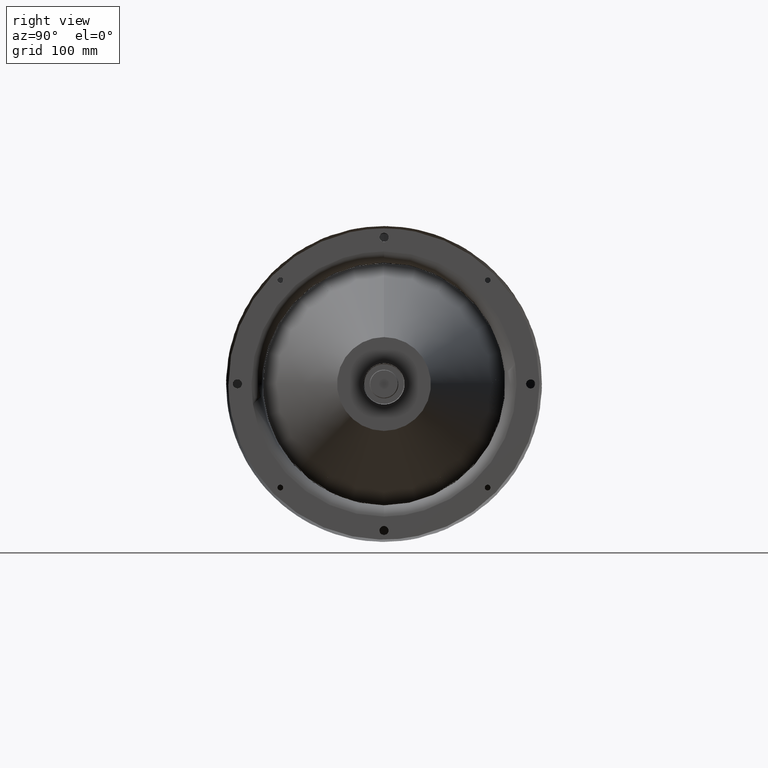
[diagram: clean part render]
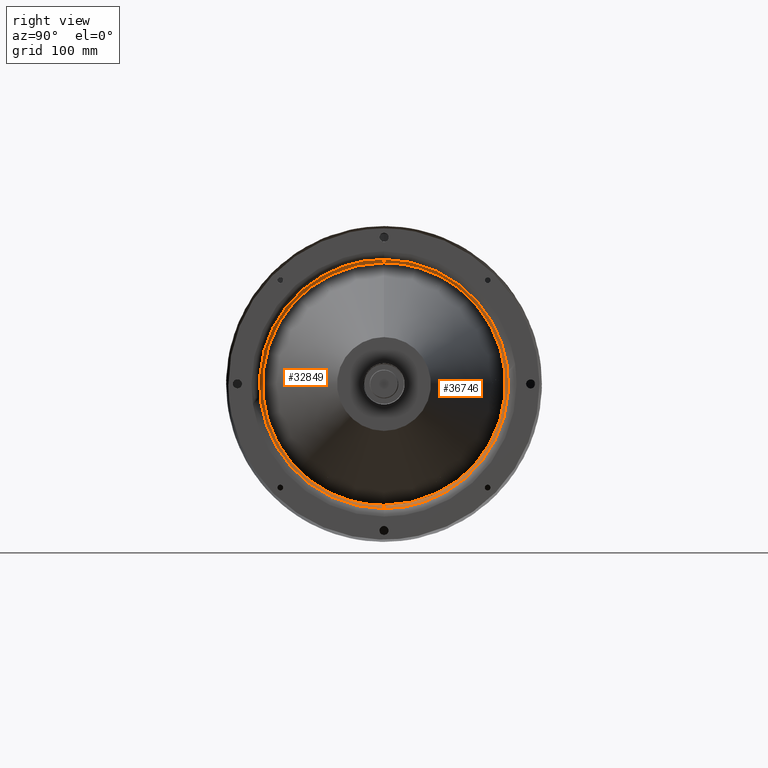
[diagram: same view with one multi-face feature highlighted, each face labeled with its STEP entity id]
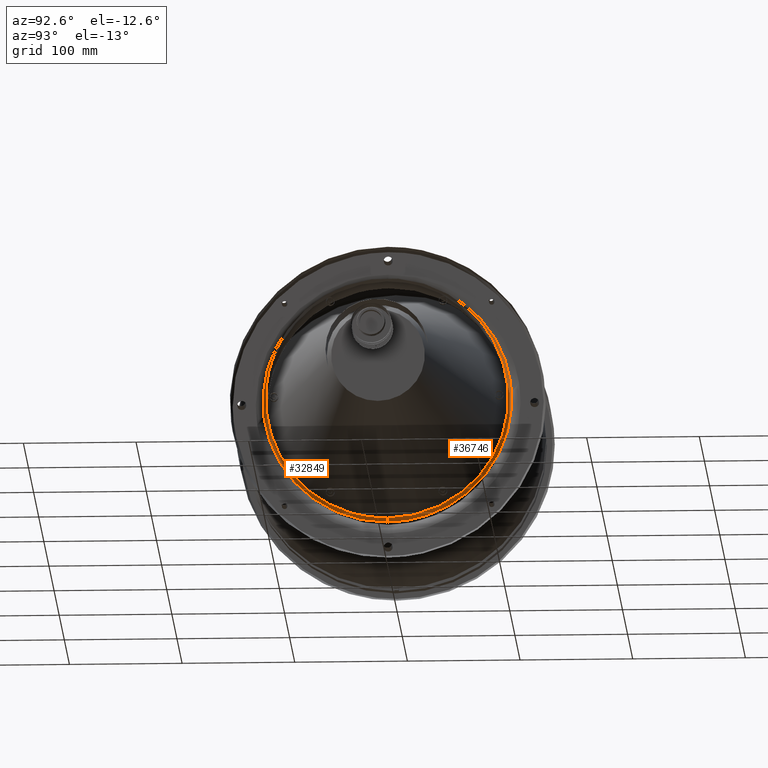
[diagram: same view with one multi-face feature highlighted, each face labeled with its STEP entity id]
A machine part, right view. The highlighted faces form ONE feature: a constant-radius fillet chain: 2 tangent blend faces with common blend radius 3 mm. The faces share edges in the B-rep.
A second angle (auxiliary view) of the same feature is appended — it is thin or edge-on in the first view.
Their STEP definitions:
[1] entity #32849 (Torus):
#41 = ORIENTED_EDGE ( 'NONE', *, *, #15006, .F. ) ;
#315 = CARTESIAN_POINT ( 'NONE',  ( 189.9999999999683382, -67.40387200346333429, -87.85939262688158635 ) ) ;
#337 = CARTESIAN_POINT ( 'NONE',  ( 192.9999999999049862, 1.075406430572910080E-10, -2.935804377379720360E-11 ) ) ;
#469 = CARTESIAN_POINT ( 'NONE',  ( 192.9999999998025260, -85.47406975086512659, 65.57390262679987813 ) ) ;
#578 = CARTESIAN_POINT ( 'NONE',  ( 189.9999999999544116, -99.32104212778517649, 48.96820830354680254 ) ) ;
#1361 = CARTESIAN_POINT ( 'NONE',  ( 189.9999999999815259, -83.24924270304020979, 73.02135593907669886 ) ) ;
#3702 = CARTESIAN_POINT ( 'NONE',  ( 192.9999999998357225, -34.63818327363666327, -102.0095562435574834 ) ) ;
#3968 = CARTESIAN_POINT ( 'NONE',  ( 192.9999999999089084, -14.07154312064334789, 106.8070455527237357 ) ) ;
#4234 = CARTESIAN_POINT ( 'NONE',  ( 192.9999999997623945, -106.8070455530594671, 14.07154311758005427 ) ) ;
#4342 = CARTESIAN_POINT ( 'NONE',  ( 190.0000000000358966, -14.46423734508711156, -109.7877072893949446 ) ) ;
#4406 = TOROIDAL_SURFACE ( 'NONE', #48106, 110.4999999998850058, 2.999999999825670116 ) ;
#4496 = CARTESIAN_POINT ( 'NONE',  ( 192.9999999998255760, -71.03887568858239376, 80.98908226661873755 ) ) ;
#4860 = CARTESIAN_POINT ( 'NONE',  ( 189.9999999999976410, -73.02135593916248979, 83.24924270297516671 ) ) ;
#5377 = CARTESIAN_POINT ( 'NONE',  ( 190.0000000000456453, -7.232208087729866008, -110.5000000000647447 ) ) ;
#7726 = CARTESIAN_POINT ( 'NONE',  ( 193.0000000002060005, -1.964130387255570030E-09, 107.5000000000199947 ) ) ;
#7999 = CARTESIAN_POINT ( 'NONE',  ( 192.9999999997733369, -102.0095562437601302, 34.63818327271494013 ) ) ;
#8366 = CIRCLE ( 'NONE', #40059, 2.999999999825670116 ) ;
#8781 = CARTESIAN_POINT ( 'NONE',  ( 192.9999999998445332, -27.87287611446775060, -104.0617897338627813 ) ) ;
#9150 = CARTESIAN_POINT ( 'NONE',  ( 190.0000000000339639, -48.96820830366510791, 99.32104212776881980 ) ) ;
#9321 = VERTEX_POINT ( 'NONE', #48935 ) ;
#10069 = AXIS2_PLACEMENT_3D ( 'NONE', #36621, #42144, #28294 ) ;
#10273 = VERTEX_POINT ( 'NONE', #27468 ) ;
#10632 = VERTEX_POINT ( 'NONE', #35213 ) ;
#11265 = B_SPLINE_CURVE_WITH_KNOTS ( 'NONE', 3,
 ( #41334, #5377, #4342, #45362, #20953, #16669, #12907, #315, #21729, #34092, #13174, #46153, #45097, #17458, #37331, #17194, #49409, #41073, #33573, #37589, #21211, #578, #49940, #12389, #1361, #4860, #33039, #29260, #9150, #29786, #49682, #41596, #20696, #45890 ),
 .UNSPECIFIED., .F., .F.,
 ( 4, 2, 2, 2, 2, 2, 2, 2, 2, 2, 2, 2, 2, 2, 2, 2, 4 ),
 ( 0.5000000000000000000, 0.5312500000000000000, 0.5625000000000000000, 0.5937500000000000000, 0.6250000000000000000, 0.6562500000000000000, 0.6875000000000000000, 0.7187500000000000000, 0.7500000000000000000, 0.7812500000000000000, 0.8125000000000000000, 0.8437500000000000000, 0.8750000000000001110, 0.9062500000000001110, 0.9375000000000001110, 0.9687500000000001110, 1.000000000000000000 ),
 .UNSPECIFIED. ) ;
#11763 = ORIENTED_EDGE ( 'NONE', *, *, #18399, .T. ) ;
#12017 = CARTESIAN_POINT ( 'NONE',  ( 192.9999999998797762, -34.63818327563712529, 102.0095562428195279 ) ) ;
#12389 = CARTESIAN_POINT ( 'NONE',  ( 189.9999999999740794, -87.85939262674122574, 67.40387200354622621 ) ) ;
#12543 = CARTESIAN_POINT ( 'NONE',  ( 192.9999999998894680, -27.87287611650845776, 104.0617897332575126 ) ) ;
#12803 = CARTESIAN_POINT ( 'NONE',  ( 192.9999999997660609, -93.29189689461944113, -53.87369747190014380 ) ) ;
#12907 = CARTESIAN_POINT ( 'NONE',  ( 189.9999999999830891, -55.37714949349133775, -95.89539169221042414 ) ) ;
#13174 = CARTESIAN_POINT ( 'NONE',  ( 189.9999999999449471, -87.85939262660473048, -67.40387200378160060 ) ) ;
#15006 = EDGE_CURVE ( 'NONE', #9321, #10273, #8366, .T. ) ;
#15432 = EDGE_CURVE ( 'NONE', #35642, #10632, #16097, .T. ) ;
#16097 = CIRCLE ( 'NONE', #10069, 2.999999999825670116 ) ;
#16560 = CARTESIAN_POINT ( 'NONE',  ( 192.9999999997568239, -107.4999999998827889, -7.035858548145551339 ) ) ;
#16669 = CARTESIAN_POINT ( 'NONE',  ( 189.9999999999911608, -48.96820830346394615, -99.32104212792548026 ) ) ;
#16688 = DIRECTION ( 'NONE',  ( 1.000000000000000000, -1.364223439299359951E-12, -2.161051562863539981E-13 ) ) ;
#16826 = CARTESIAN_POINT ( 'NONE',  ( 192.9999999997690736, -104.0617897339991202, 27.87287611352591910 ) ) ;
#17194 = CARTESIAN_POINT ( 'NONE',  ( 189.9999999999263878, -109.7877072892253096, -14.46423734544980633 ) ) ;
#17458 = CARTESIAN_POINT ( 'NONE',  ( 189.9999999999286331, -104.8563345570525769, -35.60483024916563011 ) ) ;
#18399 = EDGE_CURVE ( 'NONE', #10632, #10273, #11265, .T. ) ;
#20060 = CARTESIAN_POINT ( 'NONE',  ( 193.0000000003415153, 2.702453454497094965E-09, -107.5000000001133884 ) ) ;
#20318 = CARTESIAN_POINT ( 'NONE',  ( 192.9999999998626947, -14.07154311854880469, -106.8070455530583871 ) ) ;
#20584 = CARTESIAN_POINT ( 'NONE',  ( 192.9999999999186286, -7.035858549062316669, 107.4999999998920401 ) ) ;
#20696 = CARTESIAN_POINT ( 'NONE',  ( 190.0000000000934222, -7.232208087953710951, 110.4999999999927383 ) ) ;
#20716 = FACE_OUTER_BOUND ( 'NONE', #30013, .T. ) ;
#20845 = CARTESIAN_POINT ( 'NONE',  ( 192.9999999998098588, -80.98908226862994297, 71.03887568627843052 ) ) ;
#20953 = CARTESIAN_POINT ( 'NONE',  ( 190.0000000000081002, -35.60483024881288827, -104.8563345572650150 ) ) ;
#21211 = CARTESIAN_POINT ( 'NONE',  ( 189.9999999999439524, -104.8563345571246970, 35.60483024889575177 ) ) ;
#21729 = CARTESIAN_POINT ( 'NONE',  ( 189.9999999999617160, -73.02135593899383537, -83.24924270318048514 ) ) ;
#22458 = CARTESIAN_POINT ( 'NONE',  ( 192.9999999999288605, 1.075541754044215835E-10, 110.4999999998556603 ) ) ;
#24065 = CARTESIAN_POINT ( 'NONE',  ( 192.9999999998191527, -47.63875468420047099, -96.62454324673942097 ) ) ;
#24597 = CARTESIAN_POINT ( 'NONE',  ( 192.9999999998339888, -65.57390262923568969, 85.47406974901466015 ) ) ;
#27468 = CARTESIAN_POINT ( 'NONE',  ( 190.0000000000516138, -2.882480042511756240E-13, 110.5000000000000000 ) ) ;
#28099 = CARTESIAN_POINT ( 'NONE',  ( 192.9999999997971258, -65.57390262755946253, -85.47406975035934806 ) ) ;
#28294 = DIRECTION ( 'NONE',  ( 1.000000000000000000, -1.364223439299361970E-12, 0.000000000000000000 ) ) ;
#28366 = CARTESIAN_POINT ( 'NONE',  ( 192.9999999998721023, -7.035858546954115944, -107.5000000000886899 ) ) ;
#28626 = CARTESIAN_POINT ( 'NONE',  ( 192.9999999997569944, -104.0617897334524855, -27.87287611562544498 ) ) ;
#29149 = CARTESIAN_POINT ( 'NONE',  ( 192.9999999997742464, -85.47406974957917214, -65.57390262853478191 ) ) ;
#29260 = CARTESIAN_POINT ( 'NONE',  ( 190.0000000000245564, -55.37714949368555750, 95.89539169204081759 ) ) ;
#29786 = CARTESIAN_POINT ( 'NONE',  ( 190.0000000000533760, -35.60483024902529081, 104.8563345571355399 ) ) ;
#30013 = EDGE_LOOP ( 'NONE', ( #41, #48799, #36060, #11763 ) ) ;
#32849 = ADVANCED_FACE ( 'NONE', ( #20716 ), #4406, .T. ) ;
#33039 = CARTESIAN_POINT ( 'NONE',  ( 190.0000000000063380, -67.40387200364129683, 87.85939262668762240 ) ) ;
#33058 = DIRECTION ( 'NONE',  ( -2.161051562863539981E-13, -9.607986225502637132E-29, -1.000000000000000000 ) ) ;
#33198 = CARTESIAN_POINT ( 'NONE',  ( 192.9999999997583870, -102.0095562430808087, -34.63818327477422088 ) ) ;
#33573 = CARTESIAN_POINT ( 'NONE',  ( 189.9999999999326690, -109.7877072892546124, 14.46423734517000703 ) ) ;
#33683 = CARTESIAN_POINT ( 'NONE',  ( 193.0000000003415153, 2.702453454497094965E-09, -107.5000000001133884 ) ) ;
#34092 = CARTESIAN_POINT ( 'NONE',  ( 189.9999999999499778, -83.24924270289227479, -73.02135593930276514 ) ) ;
#35213 = CARTESIAN_POINT ( 'NONE',  ( 190.0000000000277396, 2.252650009324170087E-10, -110.5000000000287201 ) ) ;
#35628 = B_SPLINE_CURVE_WITH_KNOTS ( 'NONE', 3,
 ( #7726, #20584, #3968, #12543, #12017, #45255, #41224, #24597, #4496, #20845, #469, #53068, #49575, #7999, #16826, #4234, #40696, #16560, #36436, #28626, #33198, #44460, #12803, #29149, #40430, #36162, #28099, #45512, #24065, #3702, #8781, #20318, #28366, #20060 ),
 .UNSPECIFIED., .F., .F.,
 ( 4, 2, 2, 2, 2, 2, 2, 2, 2, 2, 2, 2, 2, 2, 2, 2, 4 ),
 ( 0.000000000000000000, 0.06250000000000001388, 0.1250000000000000000, 0.1874999999999999722, 0.2499999999999999722, 0.3124999999999999445, 0.3749999999999999445, 0.4375000000000000000, 0.5000000000000000000, 0.5625000000000000000, 0.6250000000000000000, 0.6875000000000000000, 0.7500000000000000000, 0.8125000000000001110, 0.8750000000000001110, 0.9375000000000001110, 1.000000000000000000 ),
 .UNSPECIFIED. ) ;
#35642 = VERTEX_POINT ( 'NONE', #33683 ) ;
#36060 = ORIENTED_EDGE ( 'NONE', *, *, #15432, .T. ) ;
#36162 = CARTESIAN_POINT ( 'NONE',  ( 192.9999999997905320, -71.03887568699406074, -80.98908226807060373 ) ) ;
#36436 = CARTESIAN_POINT ( 'NONE',  ( 192.9999999997562270, -106.8070455527834923, -14.07154311973341443 ) ) ;
#36621 = CARTESIAN_POINT ( 'NONE',  ( 192.9999999998811404, 1.075406430572910080E-10, -110.4999999999143654 ) ) ;
#37331 = CARTESIAN_POINT ( 'NONE',  ( 189.9999999999272688, -106.9658396796780124, -28.65072382040268906 ) ) ;
#37589 = CARTESIAN_POINT ( 'NONE',  ( 189.9999999999396039, -106.9658396797360780, 28.65072382012859720 ) ) ;
#40059 = AXIS2_PLACEMENT_3D ( 'NONE', #22458, #43123, #46364 ) ;
#40063 = EDGE_CURVE ( 'NONE', #9321, #35642, #35628, .T. ) ;
#40430 = CARTESIAN_POINT ( 'NONE',  ( 192.9999999997792202, -80.98908226723679604, -71.03887568792549700 ) ) ;
#40696 = CARTESIAN_POINT ( 'NONE',  ( 192.9999999997598366, -107.5000000000207905, 7.035858545978695311 ) ) ;
#41073 = CARTESIAN_POINT ( 'NONE',  ( 189.9999999999301679, -110.4999999999244267, 7.232208087812730390 ) ) ;
#41224 = CARTESIAN_POINT ( 'NONE',  ( 192.9999999998516103, -53.87369747267764097, 93.29189689416956810 ) ) ;
#41334 = CARTESIAN_POINT ( 'NONE',  ( 190.0000000000277396, 2.252650009324170087E-10, -110.5000000000287201 ) ) ;
#41596 = CARTESIAN_POINT ( 'NONE',  ( 190.0000000000833609, -14.46423734530946881, 109.7877072893082584 ) ) ;
#42144 = DIRECTION ( 'NONE',  ( -1.364223439299359951E-12, -1.000000000000000000, 2.948157195592955509E-25 ) ) ;
#43123 = DIRECTION ( 'NONE',  ( 1.364223439299359951E-12, 1.000000000000000000, -1.224646802095510313E-16 ) ) ;
#44460 = CARTESIAN_POINT ( 'NONE',  ( 192.9999999997627924, -96.62454324613523227, -47.63875468528519974 ) ) ;
#45097 = CARTESIAN_POINT ( 'NONE',  ( 189.9999999999332374, -99.32104212768589946, -48.96820830380546141 ) ) ;
#45255 = CARTESIAN_POINT ( 'NONE',  ( 192.9999999998608473, -47.63875468609533215, 96.62454324574650855 ) ) ;
#45362 = CARTESIAN_POINT ( 'NONE',  ( 190.0000000000171383, -28.65072382004570883, -106.9658396798763675 ) ) ;
#45512 = CARTESIAN_POINT ( 'NONE',  ( 192.9999999998113651, -53.87369747084807869, -93.29189689528483598 ) ) ;
#45890 = CARTESIAN_POINT ( 'NONE',  ( 190.0000000000516138, -2.882480042511756240E-13, 110.5000000000000000 ) ) ;
#46153 = CARTESIAN_POINT ( 'NONE',  ( 189.9999999999365059, -95.89539169195791146, -55.37714949382586127 ) ) ;
#46364 = DIRECTION ( 'NONE',  ( -1.000000000000000000, 1.364223439299361970E-12, 0.000000000000000000 ) ) ;
#48106 = AXIS2_PLACEMENT_3D ( 'NONE', #337, #16688, #33058 ) ;
#48799 = ORIENTED_EDGE ( 'NONE', *, *, #40063, .T. ) ;
#48935 = CARTESIAN_POINT ( 'NONE',  ( 193.0000000002060005, -1.964130387255570030E-09, 107.5000000000199947 ) ) ;
#49409 = CARTESIAN_POINT ( 'NONE',  ( 189.9999999999270415, -110.4999999999097611, -7.232208088094029819 ) ) ;
#49575 = CARTESIAN_POINT ( 'NONE',  ( 192.9999999997834266, -96.62454324706946807, 47.63875468333152696 ) ) ;
#49682 = CARTESIAN_POINT ( 'NONE',  ( 190.0000000000633804, -28.65072382026234976, 106.9658396797609186 ) ) ;
#49940 = CARTESIAN_POINT ( 'NONE',  ( 189.9999999999604938, -95.89539169207010616, 55.37714949357423677 ) ) ;
#53068 = CARTESIAN_POINT ( 'NONE',  ( 192.9999999997893383, -93.29189689567591870, 53.87369747001191911 ) ) ;
[2] entity #36746 (Torus):
#798 = CARTESIAN_POINT ( 'NONE',  ( 192.9999999999302247, 34.63818327427099319, -102.0095562434212155 ) ) ;
#1248 = CARTESIAN_POINT ( 'NONE',  ( 190.0000000001052172, 35.60483024924849360, -104.8563345571929375 ) ) ;
#1775 = CARTESIAN_POINT ( 'NONE',  ( 190.0000000002301022, 104.8563345572758720, 35.60483024910809746 ) ) ;
#2468 = ORIENTED_EDGE ( 'NONE', *, *, #4051, .T. ) ;
#2708 = CARTESIAN_POINT ( 'NONE',  ( 192.9999999998914575, 7.035858547257477724, -107.5000000000887042 ) ) ;
#3100 = CARTESIAN_POINT ( 'NONE',  ( 190.0000000000753175, 14.46423734553270357, -109.7877072893656702 ) ) ;
#3371 = CARTESIAN_POINT ( 'NONE',  ( 190.0000000000277396, 2.252650009324170087E-10, -110.5000000000287201 ) ) ;
#3764 = CARTESIAN_POINT ( 'NONE',  ( 193.0000000000529781, 104.0617897335822164, 27.87287611590761927 ) ) ;
#4051 = EDGE_CURVE ( 'NONE', #10273, #10632, #43620, .T. ) ;
#4301 = CARTESIAN_POINT ( 'NONE',  ( 192.9999999999759837, 65.57390262847629003, -85.47406974982817474 ) ) ;
#4352 = CARTESIAN_POINT ( 'NONE',  ( 192.9999999999049862, 1.075406430572910080E-10, -2.935804377379720360E-11 ) ) ;
#4815 = CARTESIAN_POINT ( 'NONE',  ( 193.0000000002060005, -1.964130387255570030E-09, 107.5000000000199947 ) ) ;
#5266 = CARTESIAN_POINT ( 'NONE',  ( 190.0000000002146976, 104.8563345573479211, -35.60483024895327020 ) ) ;
#5526 = CARTESIAN_POINT ( 'NONE',  ( 190.0000000002221441, 95.89539169218123504, 55.37714949376840678 ) ) ;
#5790 = CARTESIAN_POINT ( 'NONE',  ( 190.0000000001755893, 55.37714949371464002, 95.89539169215296965 ) ) ;
#6055 = CARTESIAN_POINT ( 'NONE',  ( 190.0000000001505782, 35.60483024903621185, 104.8563345572075889 ) ) ;
#8366 = CIRCLE ( 'NONE', #40059, 2.999999999825670116 ) ;
#9296 = CARTESIAN_POINT ( 'NONE',  ( 190.0000000002086722, 83.24924270311558416, 73.02135593924531065 ) ) ;
#9321 = VERTEX_POINT ( 'NONE', #48935 ) ;
#10069 = AXIS2_PLACEMENT_3D ( 'NONE', #36621, #42144, #28294 ) ;
#10273 = VERTEX_POINT ( 'NONE', #27468 ) ;
#10632 = VERTEX_POINT ( 'NONE', #35213 ) ;
#12082 = CARTESIAN_POINT ( 'NONE',  ( 193.0000000000129319, 65.57390262680041815, 85.47406975105515414 ) ) ;
#13321 = CARTESIAN_POINT ( 'NONE',  ( 190.0000000001227818, 14.46423734531042093, 109.7877072893375470 ) ) ;
#13585 = CARTESIAN_POINT ( 'NONE',  ( 190.0000000002260094, 109.7877072894778792, -14.46423734522748461 ) ) ;
#13846 = CARTESIAN_POINT ( 'NONE',  ( 190.0000000002137881, 87.85939262682802564, 67.40387200372416032 ) ) ;
#14108 = CARTESIAN_POINT ( 'NONE',  ( 190.0000000002322338, 109.7877072894485906, 14.46423734539233230 ) ) ;
#15006 = EDGE_CURVE ( 'NONE', #9321, #10273, #8366, .T. ) ;
#15432 = EDGE_CURVE ( 'NONE', #35642, #10632, #16097, .T. ) ;
#16097 = CIRCLE ( 'NONE', #10069, 2.999999999825670116 ) ;
#16368 = CARTESIAN_POINT ( 'NONE',  ( 193.0000000000531486, 107.5000000000979128, 7.035858548174445559 ) ) ;
#16891 = CARTESIAN_POINT ( 'NONE',  ( 193.0000000000538023, 106.8070455529812364, 14.07154311985005535 ) ) ;
#17152 = CARTESIAN_POINT ( 'NONE',  ( 192.9999999999583622, 53.87369747167641520, -93.29189689493730953 ) ) ;
#18397 = CARTESIAN_POINT ( 'NONE',  ( 190.0000000002042384, 99.32104212800834375, -48.96820830360432808 ) ) ;
#19460 = CARTESIAN_POINT ( 'NONE',  ( 190.0000000000953548, 28.65072382048558453, -106.9658396798183588 ) ) ;
#19899 = TOROIDAL_SURFACE ( 'NONE', #31000, 110.4999999998850058, 2.999999999825670116 ) ;
#20257 = ORIENTED_EDGE ( 'NONE', *, *, #39707, .T. ) ;
#20651 = CARTESIAN_POINT ( 'NONE',  ( 193.0000000000470948, 96.62454324608332001, 47.63875468578098804 ) ) ;
#21165 = CARTESIAN_POINT ( 'NONE',  ( 192.9999999999205329, 27.87287611502434359, -104.0617897337772746 ) ) ;
#21616 = CARTESIAN_POINT ( 'NONE',  ( 190.0000000001246860, 48.96820830388833201, -99.32104212782628849 ) ) ;
#21875 = CARTESIAN_POINT ( 'NONE',  ( 190.0000000002254126, 99.32104212790923725, 48.96820830374793587 ) ) ;
#22142 = CARTESIAN_POINT ( 'NONE',  ( 190.0000000001902549, 67.40387200368664367, 87.85939262682414608 ) ) ;
#22396 = CARTESIAN_POINT ( 'NONE',  ( 190.0000000001770957, 83.24924270326341968, -73.02135593913419598 ) ) ;
#22458 = CARTESIAN_POINT ( 'NONE',  ( 192.9999999999288605, 1.075541754044215835E-10, 110.4999999998556603 ) ) ;
#22664 = CARTESIAN_POINT ( 'NONE',  ( 190.0000000001609237, 73.02135593938568547, -83.24924270303259277 ) ) ;
#23064 = CARTESIAN_POINT ( 'NONE',  ( 193.0000000003415153, 2.702453454497094965E-09, -107.5000000001133884 ) ) ;
#24663 = CARTESIAN_POINT ( 'NONE',  ( 192.9999999999742784, 34.63818327227091487, 102.0095562440416330 ) ) ;
#24921 = CARTESIAN_POINT ( 'NONE',  ( 192.9999999999491536, 47.63875468497065668, -96.62454324647218584 ) ) ;
#25184 = CARTESIAN_POINT ( 'NONE',  ( 193.0000000000516707, 102.0095562431598353, 34.63818327513412498 ) ) ;
#25639 = CARTESIAN_POINT ( 'NONE',  ( 190.0000000000516138, -2.882480042511756240E-13, 110.5000000000000000 ) ) ;
#26433 = CARTESIAN_POINT ( 'NONE',  ( 190.0000000001846558, 87.85939262696450669, -67.40387200360369491 ) ) ;
#27468 = CARTESIAN_POINT ( 'NONE',  ( 190.0000000000516138, -2.882480042511756240E-13, 110.5000000000000000 ) ) ;
#28163 = CARTESIAN_POINT ( 'NONE',  ( 193.0000000000408988, 104.0617897341287090, -27.87287611392599729 ) ) ;
#28294 = DIRECTION ( 'NONE',  ( 1.000000000000000000, -1.364223439299361970E-12, 0.000000000000000000 ) ) ;
#28428 = CARTESIAN_POINT ( 'NONE',  ( 193.0000000000476916, 106.8070455532571259, -14.07154311781462930 ) ) ;
#28687 = CARTESIAN_POINT ( 'NONE',  ( 193.0000000000194120, 71.03887568635337857, 80.98908226877014727 ) ) ;
#28954 = CARTESIAN_POINT ( 'NONE',  ( 193.0000000000366640, 102.0095562438389436, -34.63818327319276591 ) ) ;
#29673 = CARTESIAN_POINT ( 'NONE',  ( 190.0000000001341505, 55.37714949390879582, -95.89539169209825786 ) ) ;
#30470 = CARTESIAN_POINT ( 'NONE',  ( 190.0000000001969340, 73.02135593921715895, 83.24924270312304486 ) ) ;
#31000 = AXIS2_PLACEMENT_3D ( 'NONE', #4352, #33316, #49161 ) ;
#31265 = B_SPLINE_CURVE_WITH_KNOTS ( 'NONE', 3,
 ( #23064, #2708, #47773, #21165, #798, #24921, #17152, #4301, #41289, #32475, #32733, #49899, #37550, #28954, #28163, #28428, #44525, #16368, #16891, #3764, #25184, #20651, #45055, #48851, #44790, #28687, #12082, #36765, #33532, #24663, #41555, #41029, #32996, #4815 ),
 .UNSPECIFIED., .F., .F.,
 ( 4, 2, 2, 2, 2, 2, 2, 2, 2, 2, 2, 2, 2, 2, 2, 2, 4 ),
 ( 0.000000000000000000, 0.06249999999999994449, 0.1249999999999998890, 0.1874999999999998335, 0.2499999999999998335, 0.3124999999999998335, 0.3749999999999998335, 0.4374999999999998335, 0.4999999999999997780, 0.5624999999999997780, 0.6249999999999998890, 0.6874999999999998890, 0.7500000000000000000, 0.8125000000000000000, 0.8750000000000000000, 0.9374999999999998890, 1.000000000000000000 ),
 .UNSPECIFIED. ) ;
#32475 = CARTESIAN_POINT ( 'NONE',  ( 193.0000000000001137, 80.98908226821060907, -71.03887568706910827 ) ) ;
#32733 = CARTESIAN_POINT ( 'NONE',  ( 193.0000000000074181, 85.47406975054921929, -65.57390262756014465 ) ) ;
#32968 = ORIENTED_EDGE ( 'NONE', *, *, #15432, .F. ) ;
#32996 = CARTESIAN_POINT ( 'NONE',  ( 192.9999999999378986, 7.035858545149753951, 107.5000000001679439 ) ) ;
#33316 = DIRECTION ( 'NONE',  ( 1.000000000000000000, -1.364223439299359951E-12, -2.161051562863539981E-13 ) ) ;
#33532 = CARTESIAN_POINT ( 'NONE',  ( 192.9999999999908482, 47.63875468307613659, 96.62454324734748923 ) ) ;
#33683 = CARTESIAN_POINT ( 'NONE',  ( 193.0000000003415153, 2.702453454497094965E-09, -107.5000000001133884 ) ) ;
#33974 = CARTESIAN_POINT ( 'NONE',  ( 190.0000000001675744, 48.96820830368723421, 99.32104212786798314 ) ) ;
#34768 = CARTESIAN_POINT ( 'NONE',  ( 190.0000000001982130, 95.89539169229333027, -55.37714949363171968 ) ) ;
#35213 = CARTESIAN_POINT ( 'NONE',  ( 190.0000000000277396, 2.252650009324170087E-10, -110.5000000000287201 ) ) ;
#35642 = VERTEX_POINT ( 'NONE', #33683 ) ;
#36621 = CARTESIAN_POINT ( 'NONE',  ( 192.9999999998811404, 1.075406430572910080E-10, -110.4999999999143654 ) ) ;
#36746 = ADVANCED_FACE ( 'NONE', ( #40284 ), #19899, .T. ) ;
#36765 = CARTESIAN_POINT ( 'NONE',  ( 192.9999999999986358, 53.87369746984726504, 93.29189689593491153 ) ) ;
#37550 = CARTESIAN_POINT ( 'NONE',  ( 193.0000000000265175, 96.62454324701738528, -47.63875468394521562 ) ) ;
#38513 = CARTESIAN_POINT ( 'NONE',  ( 190.0000000001415117, 28.65072382026899689, 106.9658396798189273 ) ) ;
#38764 = CARTESIAN_POINT ( 'NONE',  ( 190.0000000002190177, 106.9658396799592595, -28.65072382018607300 ) ) ;
#39032 = CARTESIAN_POINT ( 'NONE',  ( 190.0000000001522835, 67.40387200386452093, -87.85939262674506267 ) ) ;
#39172 = ORIENTED_EDGE ( 'NONE', *, *, #15006, .T. ) ;
#39707 = EDGE_CURVE ( 'NONE', #35642, #9321, #31265, .T. ) ;
#40059 = AXIS2_PLACEMENT_3D ( 'NONE', #22458, #43123, #46364 ) ;
#40284 = FACE_OUTER_BOUND ( 'NONE', #41966, .T. ) ;
#41029 = CARTESIAN_POINT ( 'NONE',  ( 192.9999999999473062, 14.07154311684571368, 106.8070455532581917 ) ) ;
#41289 = CARTESIAN_POINT ( 'NONE',  ( 192.9999999999843965, 71.03887568794128526, -80.98908226743603223 ) ) ;
#41555 = CARTESIAN_POINT ( 'NONE',  ( 192.9999999999654392, 27.87287611298400236, 104.0617897342650338 ) ) ;
#41966 = EDGE_LOOP ( 'NONE', ( #20257, #39172, #2468, #32968 ) ) ;
#42010 = CARTESIAN_POINT ( 'NONE',  ( 190.0000000002316654, 110.5000000001330136, 7.232208088036498950 ) ) ;
#42144 = DIRECTION ( 'NONE',  ( -1.364223439299359951E-12, -1.000000000000000000, 2.948157195592955509E-25 ) ) ;
#42277 = CARTESIAN_POINT ( 'NONE',  ( 190.0000000001130616, 7.232208087953195808, 110.5000000000072902 ) ) ;
#43123 = DIRECTION ( 'NONE',  ( 1.364223439299359951E-12, 1.000000000000000000, -1.224646802095510313E-16 ) ) ;
#43620 = B_SPLINE_CURVE_WITH_KNOTS ( 'NONE', 3,
 ( #25639, #42277, #13321, #38513, #6055, #33974, #5790, #22142, #30470, #9296, #13846, #5526, #21875, #1775, #50872, #14108, #42010, #46830, #13585, #38764, #5266, #18397, #34768, #26433, #22396, #22664, #39032, #29673, #21616, #1248, #19460, #3100, #43861, #3371 ),
 .UNSPECIFIED., .F., .F.,
 ( 4, 2, 2, 2, 2, 2, 2, 2, 2, 2, 2, 2, 2, 2, 2, 2, 4 ),
 ( 0.000000000000000000, 0.03125000000000000000, 0.06250000000000000000, 0.09375000000000000000, 0.1250000000000000000, 0.1562500000000000000, 0.1875000000000000000, 0.2187500000000000000, 0.2500000000000000000, 0.2812500000000000000, 0.3125000000000000000, 0.3437500000000000000, 0.3750000000000000000, 0.4062500000000000000, 0.4375000000000000000, 0.4687500000000000000, 0.5000000000000000000 ),
 .UNSPECIFIED. ) ;
#43861 = CARTESIAN_POINT ( 'NONE',  ( 190.0000000000653984, 7.232208088176899530, -110.5000000000501217 ) ) ;
#44525 = CARTESIAN_POINT ( 'NONE',  ( 193.0000000000501643, 107.5000000002358718, -7.035858546125418833 ) ) ;
#44790 = CARTESIAN_POINT ( 'NONE',  ( 193.0000000000308091, 80.98908226681778899, 71.03887568859835255 ) ) ;
#45055 = CARTESIAN_POINT ( 'NONE',  ( 193.0000000000439400, 93.29189689448735123, 53.87369747245407581 ) ) ;
#46364 = DIRECTION ( 'NONE',  ( -1.000000000000000000, 1.364223439299361970E-12, 0.000000000000000000 ) ) ;
#46830 = CARTESIAN_POINT ( 'NONE',  ( 190.0000000002285105, 110.5000000001476650, -7.232208087870259483 ) ) ;
#47773 = CARTESIAN_POINT ( 'NONE',  ( 192.9999999999011209, 14.07154311893987675, -106.8070455530409788 ) ) ;
#48851 = CARTESIAN_POINT ( 'NONE',  ( 193.0000000000357545, 85.47406974926353485, 65.57390262917732571 ) ) ;
#48935 = CARTESIAN_POINT ( 'NONE',  ( 193.0000000002060005, -1.964130387255570030E-09, 107.5000000000199947 ) ) ;
#49161 = DIRECTION ( 'NONE',  ( -2.161051562863539981E-13, -9.607986225502637132E-29, -1.000000000000000000 ) ) ;
#49899 = CARTESIAN_POINT ( 'NONE',  ( 193.0000000000206057, 93.29189689554362985, -53.87369747068364489 ) ) ;
#50872 = CARTESIAN_POINT ( 'NONE',  ( 190.0000000002314948, 106.9658396799012792, 28.65072382034520615 ) ) ;